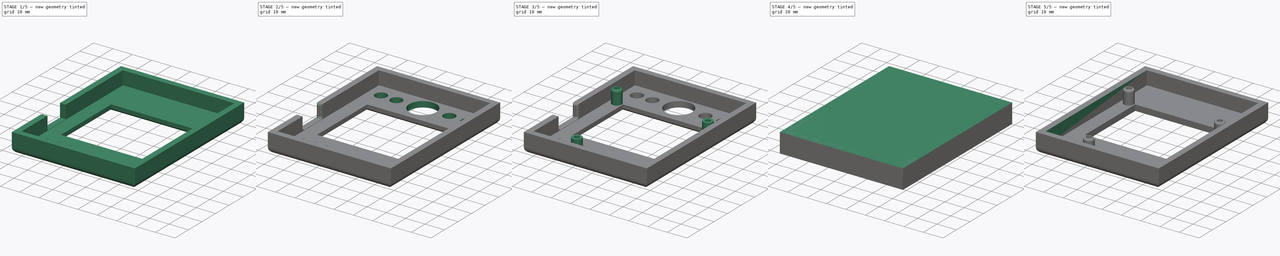
[diagram: build sequence overview — one tinted view per stage of 5, left to right]
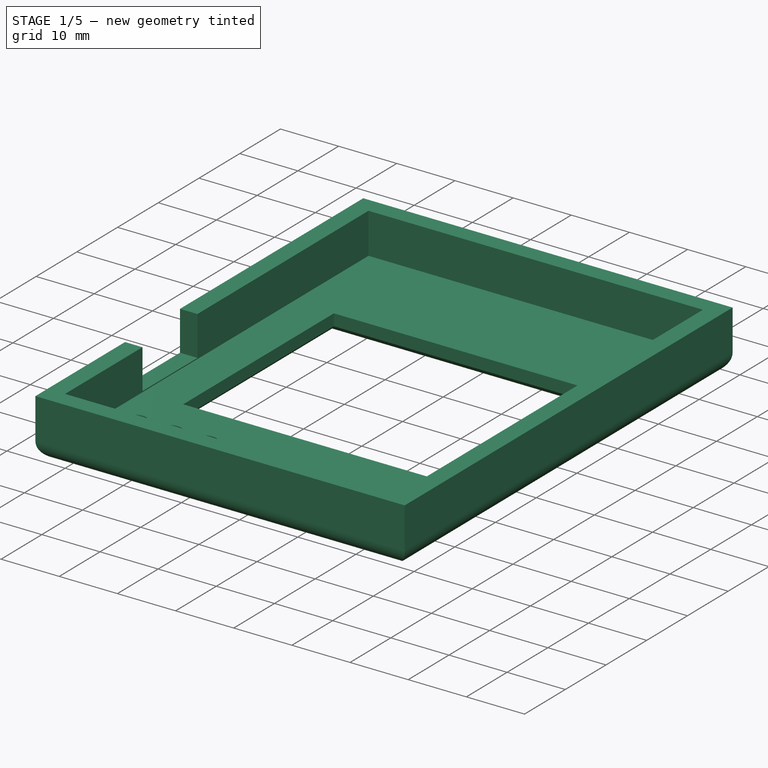
[diagram: stage 1 of 5 — iso view after this stage's code; geometry added in this stage tinted green]
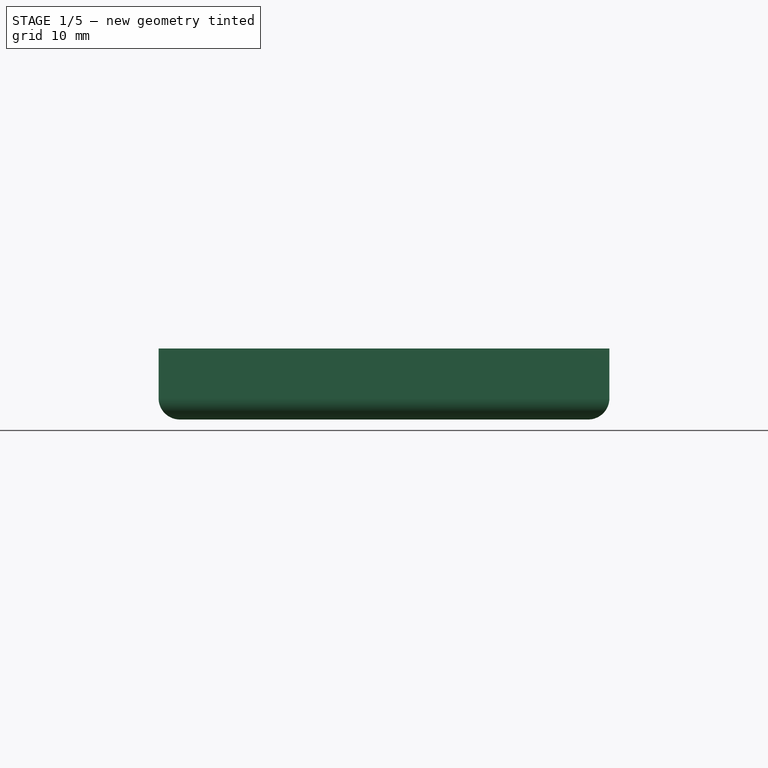
[diagram: stage 1 of 5 — front view after this stage's code; geometry added in this stage tinted green]
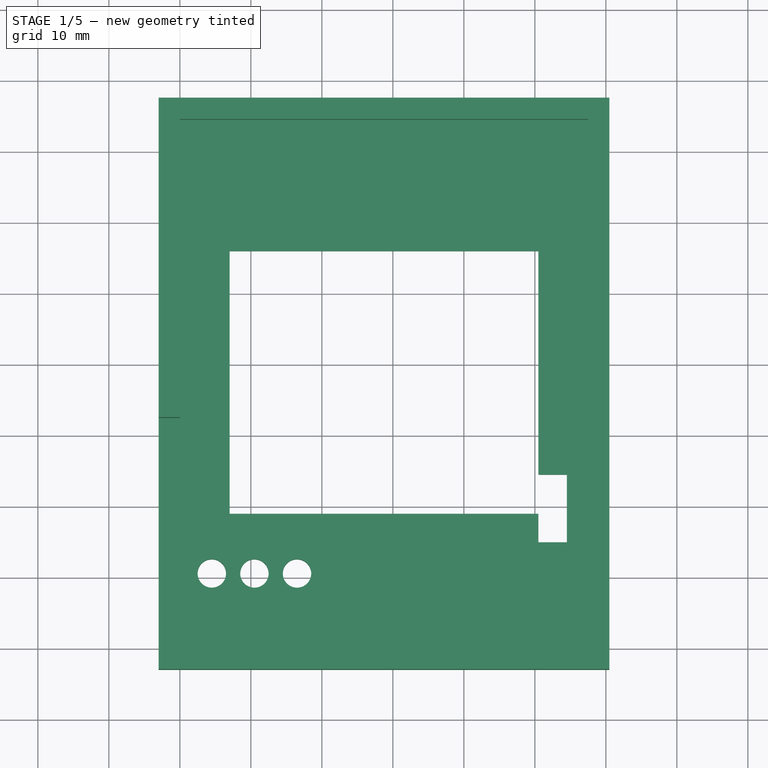
[diagram: stage 1 of 5 — top view after this stage's code; geometry added in this stage tinted green]
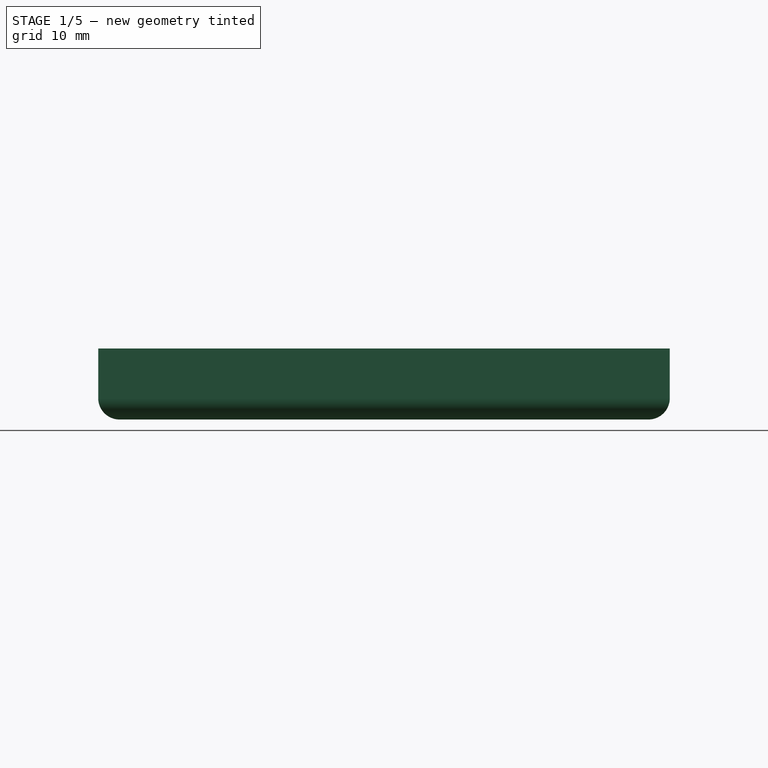
[diagram: stage 1 of 5 — right view after this stage's code; geometry added in this stage tinted green]
FCSTD DOCUMENT  (FreeCAD 0.14R3702 (Git))
Label: shell
License: CC-BY 3.0
LicenseURL: http://creativecommons.org/licenses/by/3.0/
objects: Sketcher::SketchObject×10, PartDesign::Pocket×8, PartDesign::Fillet×6, PartDesign::Pad×2
note: 36 computed .brp shape members not serialized (recipe doc carries the construction recipe); baked Part::Feature solids carry a one-line shape summary decoded from their .brp

FEATURE [Sketcher::SketchObject] Sketch003
  Placement = pos=(0,0,0) rot=(1,0,0;3.14159rad)
  sketch-geometry (6):
    g0: LineSegment [constr] StartX=54.5 StartY=-15 StartZ=0 EndX=54.5 EndY=0 EndZ=0
    g1: LineSegment [constr] StartX=57.5 StartY=-15 StartZ=0 EndX=54.5 EndY=-15 EndZ=0
    g2: LineSegment StartX=54.5 StartY=-15 StartZ=0 EndX=50.5 EndY=-15 EndZ=0
    g3: LineSegment StartX=50.5 StartY=-15 StartZ=0 EndX=50.5 EndY=-24.5305 EndZ=0
    g4: LineSegment StartX=50.5 StartY=-24.5305 StartZ=0 EndX=54.5 EndY=-24.5305 EndZ=0
    g5: LineSegment StartX=54.5 StartY=-24.5305 StartZ=0 EndX=54.5 EndY=-15 EndZ=0
FEATURE [PartDesign::Pocket] Pocket002
  Length = 5
  Sketch = -> Sketch003
  Type = 0
FEATURE [Sketcher::SketchObject] Sketch004
  Placement = pos=(0,0,0) rot=(1,0,0;3.14159rad)
  Support = -> Pocket002 [Face1]
  sketch-geometry (4):
    g0: LineSegment [constr] StartX=5.69455 StartY=0 StartZ=0 EndX=5.69455 EndY=-10.6 EndZ=0
    g1: Circle CenterX=4.5 CenterY=-10.6 CenterZ=0 NormalX=0 NormalY=0 NormalZ=1 Radius=2
    g2: Circle CenterX=10.5 CenterY=-10.6 CenterZ=0 NormalX=0 NormalY=0 NormalZ=1 Radius=2
    g3: Circle CenterX=16.5 CenterY=-10.6 CenterZ=0 NormalX=0 NormalY=0 NormalZ=1 Radius=2
FEATURE [PartDesign::Pocket] Pocket003
  Length = 5
  Sketch = -> Sketch004
  Type = 0
FEATURE [Sketcher::SketchObject] Sketch005
  ExternalGeometry = -> [Pocket003]
  Placement = pos=(-3,0,0) rot=(0.57735,-0.57735,-0.57735;2.0944rad)
  Support = -> Pocket003 [Face18]
  sketch-geometry (7):
    g0: LineSegment [constr] StartX=3 StartY=6.8244 StartZ=0 EndX=0 EndY=6.8244 EndZ=0
    g1: LineSegment [constr] StartX=0 StartY=10 StartZ=0 EndX=0 EndY=2.96155 EndZ=0
    g2: LineSegment [constr] StartX=0 StartY=5.19404 StartZ=0 EndX=-19 EndY=5.19404 EndZ=0
    g3: LineSegment StartX=-32.5 StartY=10.1842 StartZ=0 EndX=-19 EndY=10.1842 EndZ=0
    g4: LineSegment StartX=-19 StartY=10.1842 StartZ=0 EndX=-19 EndY=3.1842 EndZ=0
    g5: LineSegment StartX=-19 StartY=3.1842 StartZ=0 EndX=-32.5 EndY=3.1842 EndZ=0
    g6: LineSegment StartX=-32.5 StartY=3.1842 StartZ=0 EndX=-32.5 EndY=10.1842 EndZ=0
  constraints (20):
    c: PointOnObject(g0,g-3)
    c: Horizontal(g0)
    c: PointOnObject(g1,g-4)
    c: Vertical(g1)
    c: PointOnObject(g0,g1)
    c: DistanceX(g0) = -3
    c: PointOnObject(g2,g1)
    c: Horizontal(g2)
    c: DistanceX(g2) = -19
    c: Coincident(g3,g4)
    c: Coincident(g4,g5)
    c: Coincident(g5,g6)
    c: Coincident(g6,g3)
    c: Horizontal(g3)
    c: Horizontal(g5)
    c: Vertical(g4)
    c: Vertical(g6)
    c: PointOnObject(g2,g4)
    c: DistanceX(g5) = -13.5
    c: DistanceY(g6) = 7
FEATURE [PartDesign::Pocket] Pocket004
  Length = 5
  Sketch = -> Sketch005
  Type = 0
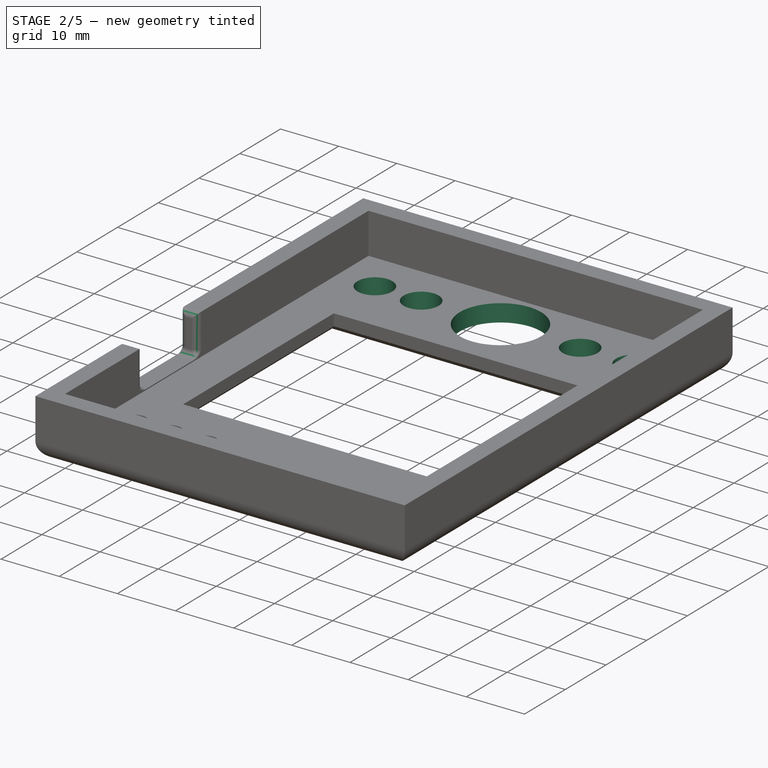
[diagram: stage 2 of 5 — iso view after this stage's code; geometry added in this stage tinted green]
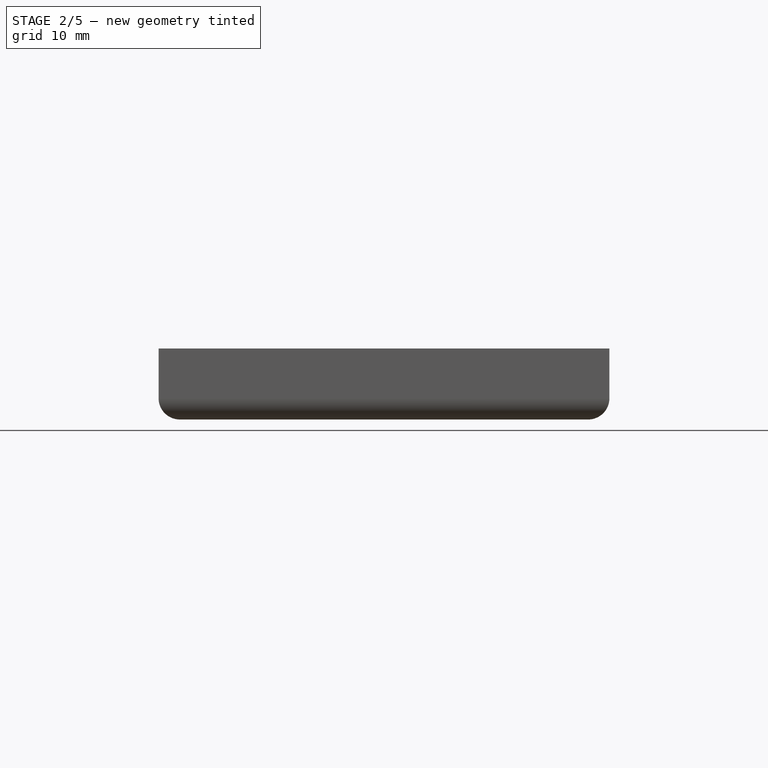
[diagram: stage 2 of 5 — front view after this stage's code; geometry added in this stage tinted green]
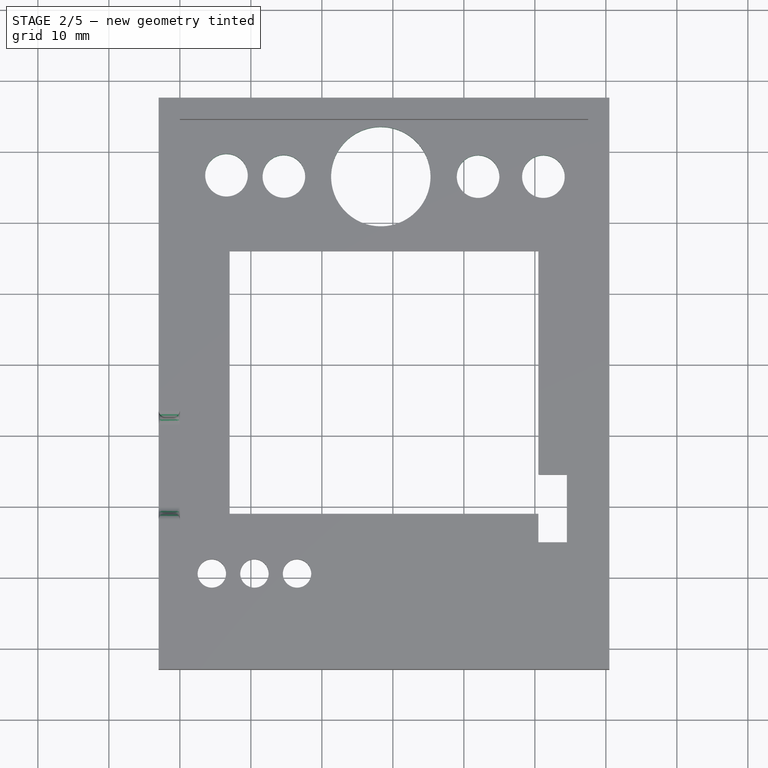
[diagram: stage 2 of 5 — top view after this stage's code; geometry added in this stage tinted green]
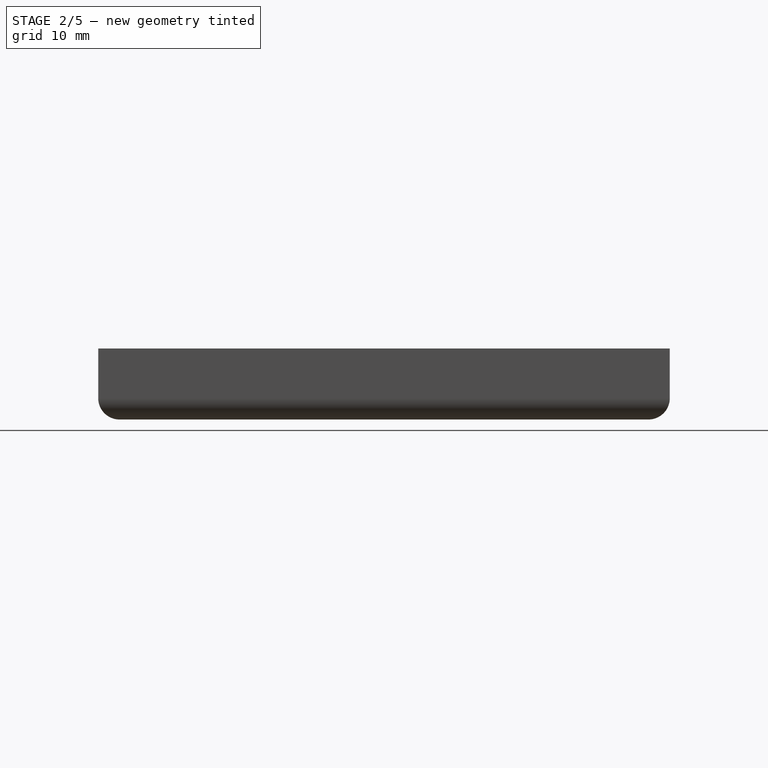
[diagram: stage 2 of 5 — right view after this stage's code; geometry added in this stage tinted green]
FEATURE [PartDesign::Fillet] Fillet001
  Base = -> Pocket004 [Edge54,Edge81,Edge82,Edge71]
  Radius = 1
FEATURE [PartDesign::Fillet] Fillet002
  Base = -> Fillet001 [Edge3,Edge15,Edge16,Edge11]
  Radius = 1
FEATURE [Sketcher::SketchObject] Sketch006
  ExternalGeometry = -> [Fillet002]
  Placement = pos=(0,0,0) rot=(1,0,0;3.14159rad)
  Support = -> Fillet002 [Face24]
  sketch-geometry (6):
    g0: LineSegment [constr] StartX=9.95956 StartY=-74.5 StartZ=0 EndX=9.95956 EndY=-66.5 EndZ=0
    g1: Circle CenterX=28.3 CenterY=-66.5 CenterZ=0 NormalX=0 NormalY=0 NormalZ=1 Radius=7
    g2: Circle CenterX=42 CenterY=-66.5 CenterZ=0 NormalX=0 NormalY=0 NormalZ=1 Radius=3
    g3: Circle CenterX=51.2 CenterY=-66.5 CenterZ=0 NormalX=0 NormalY=0 NormalZ=1 Radius=3
    g4: Circle CenterX=6.56375 CenterY=-66.6989 CenterZ=0 NormalX=0 NormalY=0 NormalZ=1 Radius=3
    g5: Circle CenterX=14.646 CenterY=-66.5232 CenterZ=0 NormalX=0 NormalY=0 NormalZ=1 Radius=3
  constraints (8):
    c: PointOnObject(g0,g-3)
    c: Vertical(g0)
    c: DistanceY(g0) = 8
    c: Radius(g1) = 7
    c: Radius(g5) = 3
    c: Radius(g4) = 3
    c: Radius(g2) = 3
    c: Radius(g3) = 3
FEATURE [PartDesign::Pocket] Pocket005
  Length = 5
  Sketch = -> Sketch006
  Type = 0
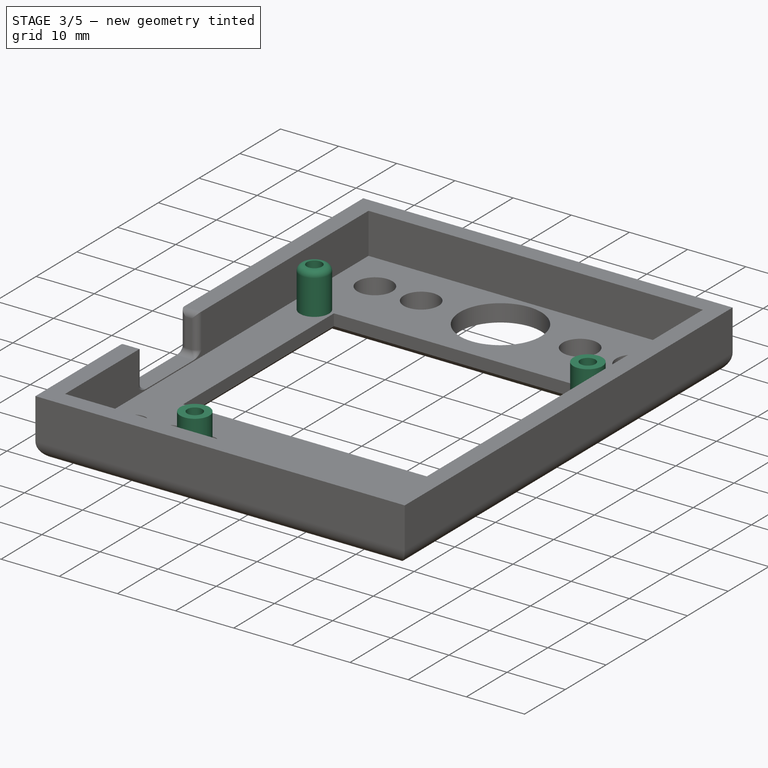
[diagram: stage 3 of 5 — iso view after this stage's code; geometry added in this stage tinted green]
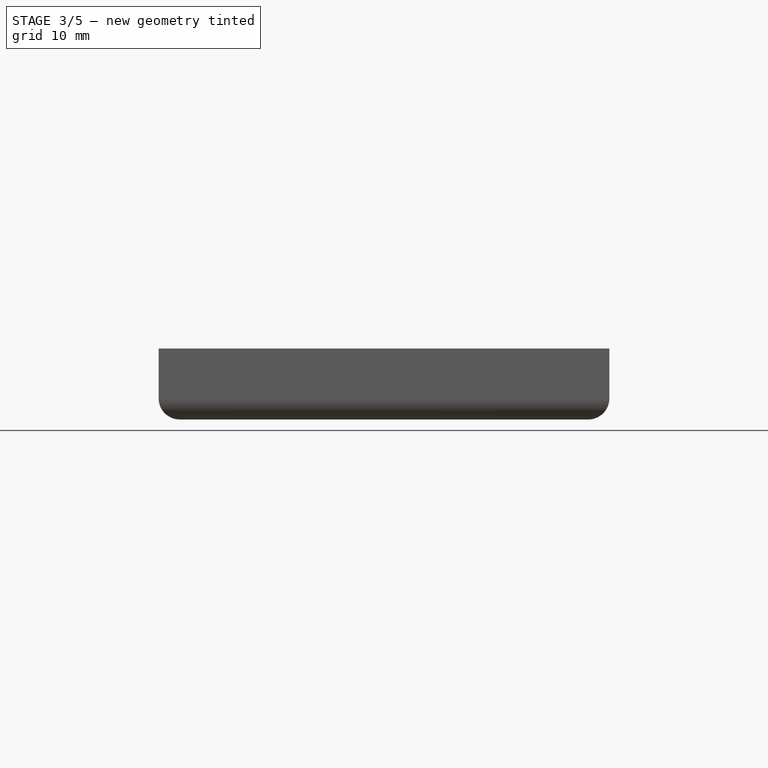
[diagram: stage 3 of 5 — front view after this stage's code; geometry added in this stage tinted green]
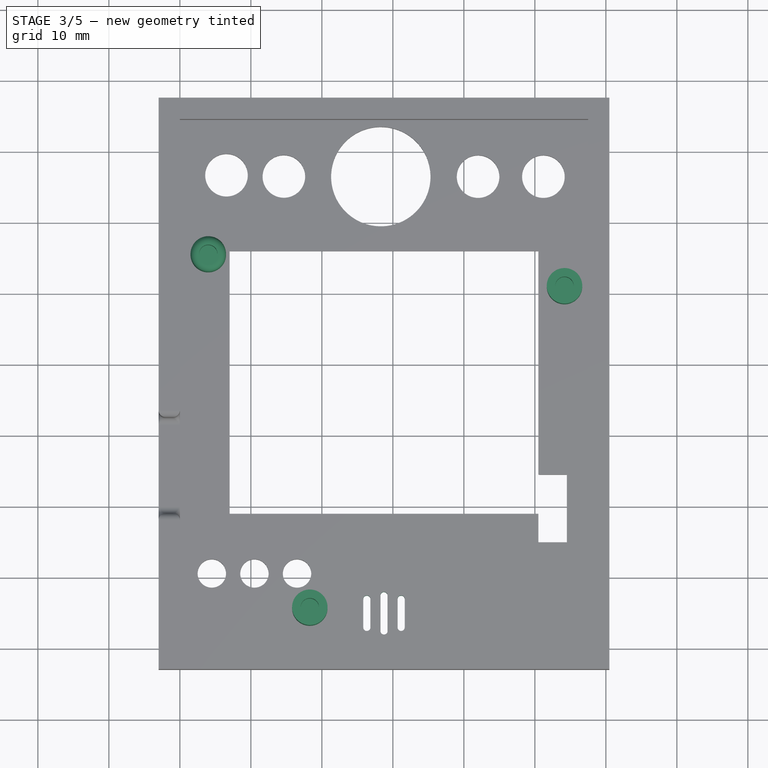
[diagram: stage 3 of 5 — top view after this stage's code; geometry added in this stage tinted green]
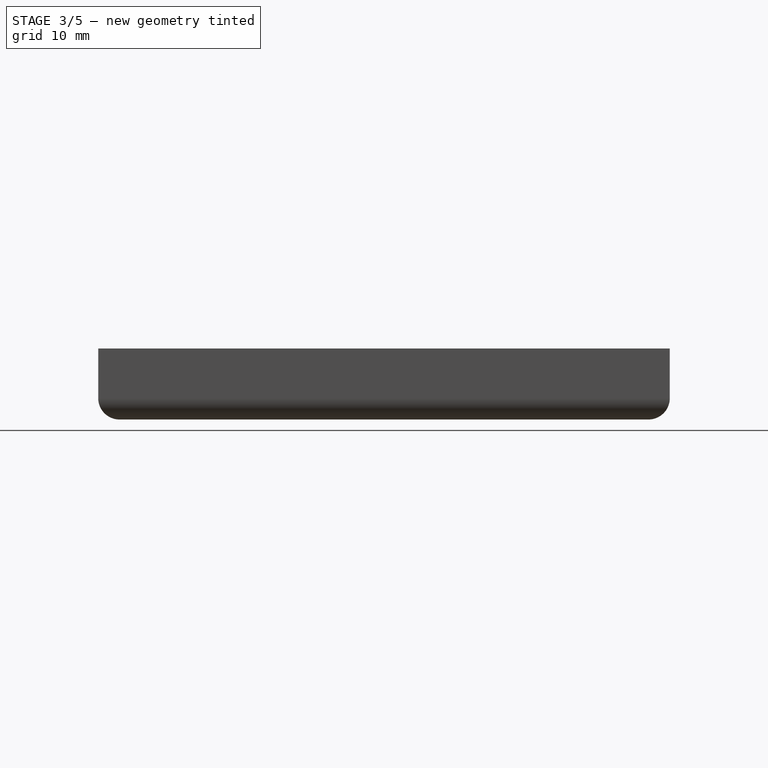
[diagram: stage 3 of 5 — right view after this stage's code; geometry added in this stage tinted green]
FEATURE [Sketcher::SketchObject] Sketch007
  ExternalGeometry = -> [Pocket005]
  Placement = pos=(0,0,0) rot=(1,0,0;3.14159rad)
  Support = -> Pocket005 [Face24]
  sketch-geometry (24):
    g0: LineSegment [constr] StartX=0 StartY=-10.6181 StartZ=0 EndX=57.5 EndY=-10.6181 EndZ=0
    g1: ArcOfCircle CenterX=28.75 CenterY=-2.5 CenterZ=0 NormalX=0 NormalY=0 NormalZ=1 Radius=0.5 StartAngle=6.28318 EndAngle=9.42478
    g2: ArcOfCircle CenterX=28.75 CenterY=-7.5 CenterZ=0 NormalX=0 NormalY=0 NormalZ=1 Radius=0.5 StartAngle=3.14159 EndAngle=6.28318
    g3: LineSegment StartX=28.25 StartY=-2.5 StartZ=0 EndX=28.25 EndY=-7.5 EndZ=0
    g4: LineSegment StartX=29.25 StartY=-2.5 StartZ=0 EndX=29.25 EndY=-7.5 EndZ=0
    g5: LineSegment [constr] StartX=0 StartY=-2.5 StartZ=0 EndX=57.5 EndY=-2.5 EndZ=0
    g6: LineSegment [constr] StartX=6.72581 StartY=0 StartZ=0 EndX=6.72581 EndY=-2.5 EndZ=0
    g7: LineSegment [constr] StartX=0 StartY=0 StartZ=0 EndX=28.75 EndY=-2.5 EndZ=0
    g8: LineSegment [constr] StartX=28.75 StartY=-2.5 StartZ=0 EndX=57.5 EndY=0 EndZ=0
    g9: LineSegment [constr] StartX=25.8766 StartY=0 StartZ=0 EndX=28.75 EndY=-10.6181 EndZ=0
    g10: LineSegment [constr] StartX=28.75 StartY=-10.6181 StartZ=0 EndX=31.6234 EndY=0 EndZ=0
    g11: LineSegment [constr] StartX=28.75 StartY=-7.5 StartZ=0 EndX=28.75 EndY=-10.6181 EndZ=0
    g12: ArcOfCircle CenterX=31.1642 CenterY=-7 CenterZ=0 NormalX=0 NormalY=0 NormalZ=1 Radius=0.5 StartAngle=3.1416 EndAngle=6.28319
    g13: ArcOfCircle CenterX=31.1642 CenterY=-3 CenterZ=0 NormalX=0 NormalY=0 NormalZ=1 Radius=0.5 StartAngle=6.28319 EndAngle=9.42478
    g14: LineSegment StartX=31.6642 StartY=-7 StartZ=0 EndX=31.6642 EndY=-3 EndZ=0
    g15: LineSegment StartX=30.6642 StartY=-7 StartZ=0 EndX=30.6642 EndY=-3 EndZ=0
    g16: ArcOfCircle CenterX=26.3358 CenterY=-3 CenterZ=0 NormalX=0 NormalY=0 NormalZ=1 Radius=0.5 StartAngle=6.28319 EndAngle=9.42478
    g17: ArcOfCircle CenterX=26.3358 CenterY=-7 CenterZ=0 NormalX=0 NormalY=0 NormalZ=1 Radius=0.5 StartAngle=3.14159 EndAngle=6.28318
    g18: LineSegment StartX=25.8358 StartY=-3 StartZ=0 EndX=25.8358 EndY=-7 EndZ=0
    g19: LineSegment StartX=26.8358 StartY=-3 StartZ=0 EndX=26.8358 EndY=-7 EndZ=0
    g20: LineSegment [constr] StartX=28.25 StartY=-2.5 StartZ=0 EndX=26.8358 EndY=-3 EndZ=0
    g21: LineSegment [constr] StartX=29.25 StartY=-2.5 StartZ=0 EndX=30.6642 EndY=-3 EndZ=0
    g22: LineSegment [constr] StartX=26.8358 StartY=-7 StartZ=0 EndX=28.25 EndY=-7.5 EndZ=0
    g23: LineSegment [constr] StartX=29.25 StartY=-7.5 StartZ=0 EndX=30.6642 EndY=-7 EndZ=0
  constraints (75):
    c: PointOnObject(g0,g-2)
    c: Horizontal(g0)
    c: PointOnObject(g0,g-3)
    c: Tangent(g1,g3)
    c: Tangent(g1,g4)
    c: Tangent(g2,g3)
    c: Tangent(g2,g4)
    c: Coincident(g1,g4)
    c: Coincident(g1,g3)
    c: Coincident(g3,g2)
    c: Coincident(g4,g2)
    c: Vertical(g3)
    c: Equal(g1,g2)
    c: Radius(g1) = 0.5
    c: DistanceY(g4) = -5
    c: PointOnObject(g5,g-2)
    c: PointOnObject(g5,g-3)
    c: Horizontal(g5)
    c: PointOnObject(g6,g-1)
    c: Vertical(g6)
    c: DistanceY(g6) = -2.5
    c: PointOnObject(g6,g5)
    c: PointOnObject(g1,g5)
    c: Coincident(g7,g-1)
    c: Coincident(g7,g1)
    c: Coincident(g8,g1)
    c: Coincident(g8,g-3)
    c: Equal(g8,g7)
    c: PointOnObject(g9,g-1)
    c: PointOnObject(g9,g0)
    c: PointOnObject(g10,g-1)
    c: Coincident(g10,g9)
    c: Distance(g10) = 11
    c: Equal(g9,g10)
    c: Coincident(g11,g2)
    c: PointOnObject(g11,g0)
    c: Vertical(g11)
    c: Coincident(g9,g11)
    c: Tangent(g12,g14)
    c: Tangent(g12,g15)
    c: Tangent(g13,g14)
    c: Tangent(g13,g15)
    c: Coincident(g12,g15)
    c: Coincident(g12,g14)
    c: Coincident(g14,g13)
    c: Coincident(g15,g13)
    c: Vertical(g14)
    c: Equal(g12,g13)
    c: Radius(g13) = 0.5
    c: DistanceY(g14) = 4
    c: Tangent(g16,g18)
    c: Tangent(g16,g19)
    c: Tangent(g17,g18)
    c: Tangent(g17,g19)
    c: Coincident(g16,g19)
    c: Coincident(g16,g18)
    c: Coincident(g18,g17)
    c: Coincident(g19,g17)
    c: Vertical(g18)
    c: Equal(g16,g17)
    c: Radius(g16) = 0.5
    c: DistanceY(g19) = -4
    c: Coincident(g20,g1)
    c: Coincident(g20,g16)
    c: Coincident(g21,g1)
    c: Coincident(g21,g13)
    c: Equal(g21,g20)
    c: Coincident(g22,g17)
    c: Coincident(g22,g2)
    c: Coincident(g23,g2)
    c: Coincident(g23,g12)
    c: Equal(g22,g23)
    c: Equal(g23,g21)
    c: Equal(g21,g20)
    c: Distance(g23) = 1.5
FEATURE [PartDesign::Pocket] Pocket006
  Length = 5
  Sketch = -> Sketch007
  Type = 0
FEATURE [Sketcher::SketchObject] Sketch008
  ExternalGeometry = -> [Pocket006]
  Placement = pos=(0,0,3) rot=(0,0,1;0rad)
  Support = -> Pocket006 [Face29]
  sketch-geometry (9):
    g0: LineSegment [constr] StartX=4 StartY=74.5 StartZ=0 EndX=4 EndY=55.5 EndZ=0
    g1: LineSegment [constr] StartX=4 StartY=55.5 StartZ=0 EndX=57.5 EndY=55.5 EndZ=0
    g2: Circle CenterX=4 CenterY=55.5 CenterZ=0 NormalX=0 NormalY=0 NormalZ=1 Radius=2.5
    g3: LineSegment [constr] StartX=54 StartY=51 StartZ=0 EndX=57.5 EndY=51 EndZ=0
    g4: LineSegment [constr] StartX=54 StartY=51 StartZ=0 EndX=54 EndY=74.5 EndZ=0
    g5: Circle CenterX=54.1711 CenterY=51 CenterZ=0 NormalX=0 NormalY=0 NormalZ=1 Radius=2.5
    g6: LineSegment [constr] StartX=0 StartY=5.71716 StartZ=0 EndX=18.3 EndY=5.71716 EndZ=0
    g7: LineSegment [constr] StartX=18.3 StartY=5.71716 StartZ=0 EndX=18.3 EndY=-0.282843 EndZ=0
    g8: Circle CenterX=18.3 CenterY=5.71716 CenterZ=0 NormalX=0 NormalY=0 NormalZ=1 Radius=2.5
  constraints (26):
    c: Vertical(g0)
    c: DistanceY(g0) = -19
    c: Coincident(g1,g0)
    c: PointOnObject(g1,g-3)
    c: Horizontal(g1)
    c: DistanceX(g1) = 53.5
    c: Coincident(g2,g0)
    c: PointOnObject(g3,g-3)
    c: Horizontal(g3)
    c: Coincident(g4,g3)
    c: PointOnObject(g4,g-5)
    c: Vertical(g4)
    c: DistanceY(g4) = 23.5
    c: PointOnObject(g0,g-5)
    c: Radius(g2) = 2.5
    c: DistanceX(g3) = 3.5
    c: PointOnObject(g5,g3)
    c: Radius(g5) = 2.5
    c: PointOnObject(g6,g-2)
    c: Vertical(g7)
    c: Horizontal(g6)
    c: Coincident(g7,g6)
    c: DistanceX(g6) = 18.3
    c: DistanceY(g7) = -6
    c: Coincident(g8,g6)
    c: Radius(g8) = 2.5
FEATURE [PartDesign::Pad] Pad001
  Length = 7
  Length2 = 100
  Sketch = -> Sketch008
  Type = 0
FEATURE [Sketcher::SketchObject] Sketch009
  ExternalGeometry = -> [Pad001]
  Placement = pos=(0,0,10) rot=(0,0,1;0rad)
  Support = -> Pad001 [Face66]
  sketch-geometry (3):
    g0: Circle CenterX=4 CenterY=55.5 CenterZ=0 NormalX=0 NormalY=0 NormalZ=1 Radius=1.3
    g1: Circle CenterX=18.3 CenterY=5.71716 CenterZ=0 NormalX=0 NormalY=0 NormalZ=1 Radius=1.3
    g2: Circle CenterX=54.1711 CenterY=51 CenterZ=0 NormalX=0 NormalY=0 NormalZ=1 Radius=1.3
  constraints (6):
    c: Coincident(g0,g-3)
    c: Coincident(g1,g-5)
    c: Coincident(g2,g-4)
    c: Radius(g2) = 1.3
    c: Radius(g0) = 1.3
    c: Radius(g1) = 1.3
FEATURE [PartDesign::Pocket] Pocket007
  Length = 5
  Sketch = -> Sketch009
  Type = 0
FEATURE [PartDesign::Fillet] Fillet003
  Base = -> Pocket007 [Edge170]
  Radius = 1
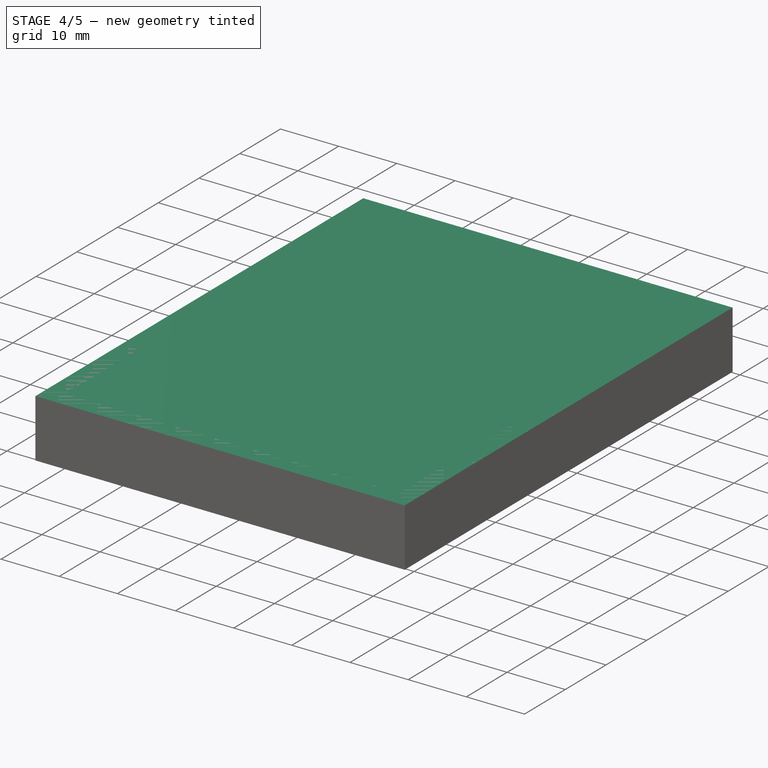
[diagram: stage 4 of 5 — iso view after this stage's code; geometry added in this stage tinted green]
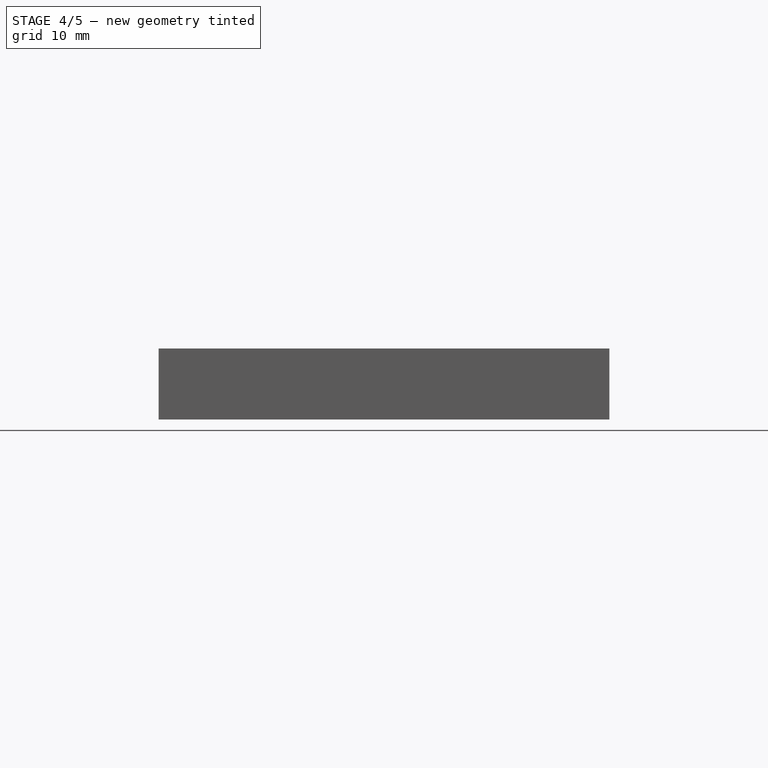
[diagram: stage 4 of 5 — front view after this stage's code; geometry added in this stage tinted green]
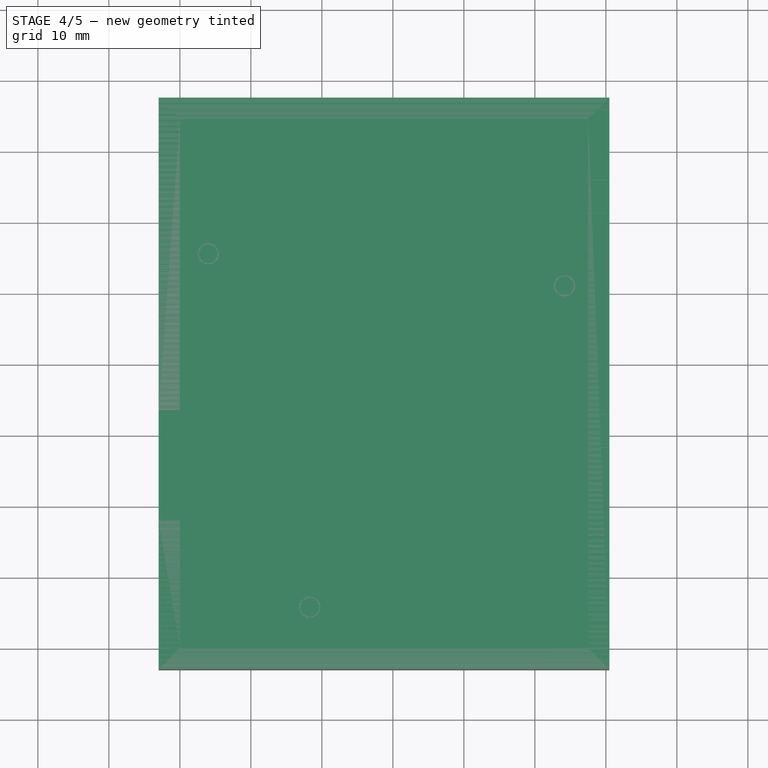
[diagram: stage 4 of 5 — top view after this stage's code; geometry added in this stage tinted green]
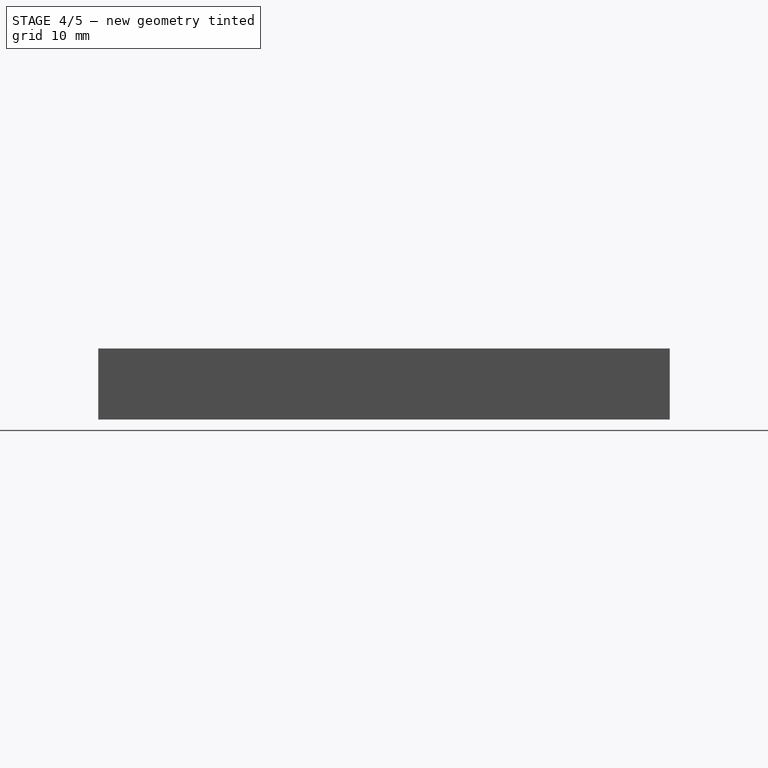
[diagram: stage 4 of 5 — right view after this stage's code; geometry added in this stage tinted green]
FEATURE [Sketcher::SketchObject] Sketch
  sketch-geometry (12):
    g0: LineSegment [constr] StartX=0 StartY=0 StartZ=0 EndX=57.5 EndY=0 EndZ=0
    g1: LineSegment [constr] StartX=57.5 StartY=0 StartZ=0 EndX=57.5 EndY=74.5 EndZ=0
    g2: LineSegment [constr] StartX=0 StartY=0 StartZ=0 EndX=0 EndY=74.5 EndZ=0
    g3: LineSegment [constr] StartX=0 StartY=74.5 StartZ=0 EndX=57.5 EndY=74.5 EndZ=0
    g4: LineSegment StartX=-3 StartY=77.5 StartZ=0 EndX=60.5 EndY=77.5 EndZ=0
    g5: LineSegment StartX=60.5 StartY=77.5 StartZ=0 EndX=60.5 EndY=-3 EndZ=0
    g6: LineSegment StartX=60.5 StartY=-3 StartZ=0 EndX=-3 EndY=-3 EndZ=0
    g7: LineSegment StartX=-3 StartY=-3 StartZ=0 EndX=-3 EndY=77.5 EndZ=0
    g8: LineSegment [constr] StartX=-3 StartY=54.1987 StartZ=0 EndX=0 EndY=54.1987 EndZ=0
    g9: LineSegment [constr] StartX=10 StartY=77.5 StartZ=0 EndX=10 EndY=74.5 EndZ=0
    g10: LineSegment [constr] StartX=60.5 StartY=55.8519 StartZ=0 EndX=57.5 EndY=55.8519 EndZ=0
    g11: LineSegment [constr] StartX=30 StartY=-3 StartZ=0 EndX=30 EndY=0 EndZ=0
  constraints (34):
    c: Coincident(g0,g-1)
    c: Horizontal(g0)
    c: Coincident(g1,g0)
    c: Vertical(g1)
    c: Coincident(g2,g-1)
    c: PointOnObject(g2,g-2)
    c: Coincident(g3,g2)
    c: Horizontal(g3)
    c: Coincident(g1,g3)
    c: DistanceY(g1) = 74.5
    c: Coincident(g4,g5)
    c: Coincident(g5,g6)
    c: Coincident(g6,g7)
    c: Coincident(g7,g4)
    c: Horizontal(g4)
    c: Horizontal(g6)
    c: Vertical(g5)
    c: Vertical(g7)
    c: PointOnObject(g8,g7)
    c: PointOnObject(g8,g2)
    c: Horizontal(g8)
    c: PointOnObject(g9,g4)
    c: PointOnObject(g9,g3)
    c: Vertical(g9)
    c: PointOnObject(g10,g5)
    c: PointOnObject(g10,g1)
    c: Horizontal(g10)
    c: PointOnObject(g11,g6)
    c: PointOnObject(g11,g0)
    c: Vertical(g11)
    c: DistanceX(g8) = 3
    c: DistanceY(g11) = 3
    c: DistanceX(g10) = -3
    c: DistanceY(g9) = -3
FEATURE [PartDesign::Pad] Pad
  Length = 10
  Length2 = 100
  Sketch = -> Sketch
  Type = 0
FEATURE [PartDesign::Fillet] Fillet004
  Base = -> Fillet003 [Edge116]
  Radius = 1
FEATURE [PartDesign::Fillet] Fillet005
  Base = -> Fillet004 [Edge114]
  Radius = 1
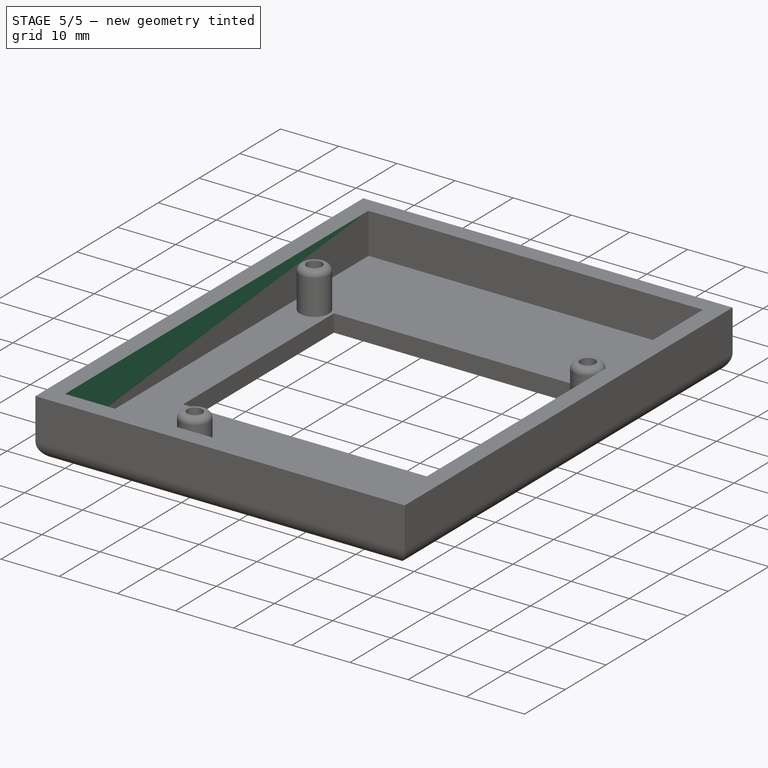
[diagram: stage 5 of 5 — iso view after this stage's code; geometry added in this stage tinted green]
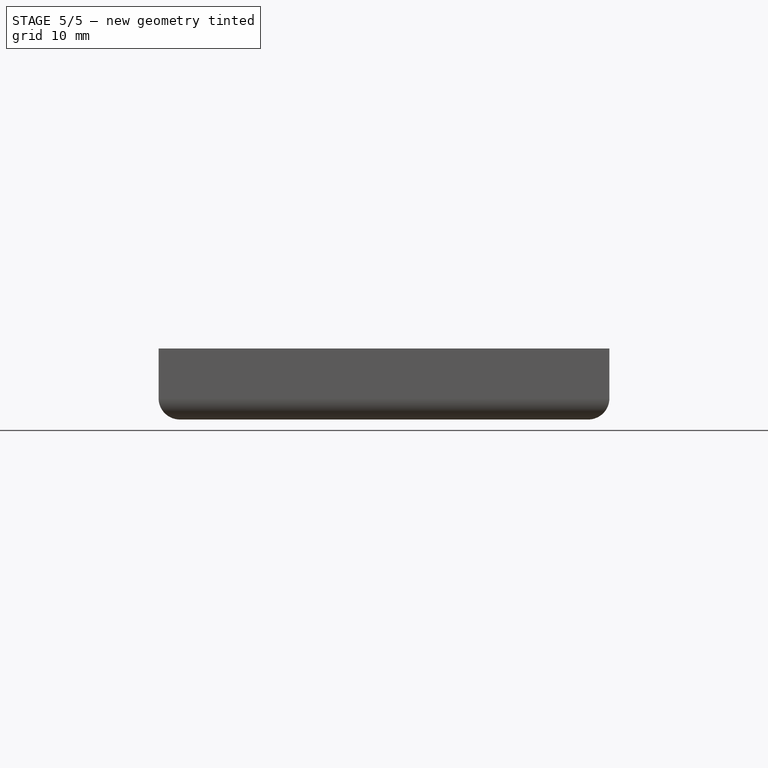
[diagram: stage 5 of 5 — front view after this stage's code; geometry added in this stage tinted green]
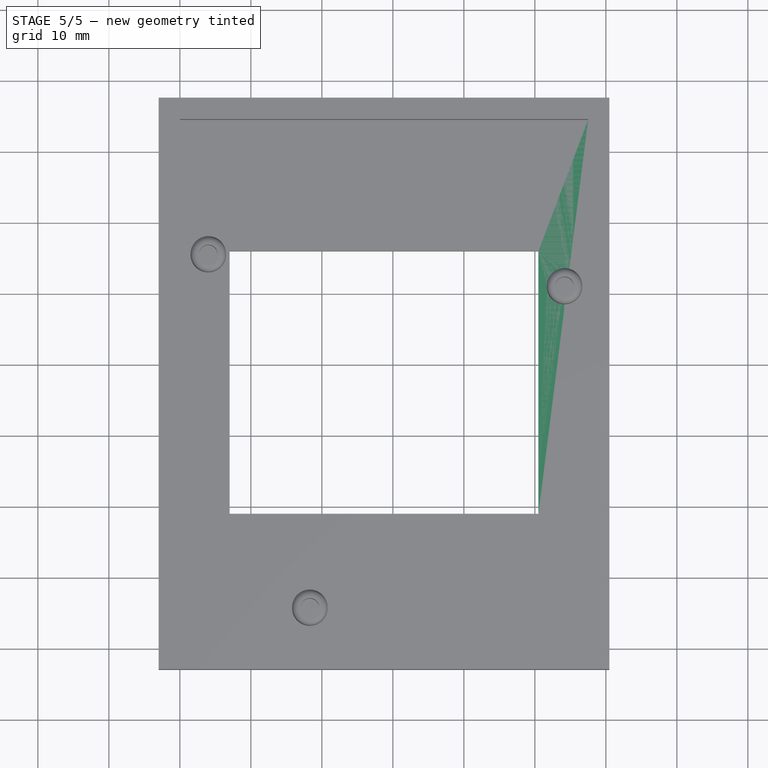
[diagram: stage 5 of 5 — top view after this stage's code; geometry added in this stage tinted green]
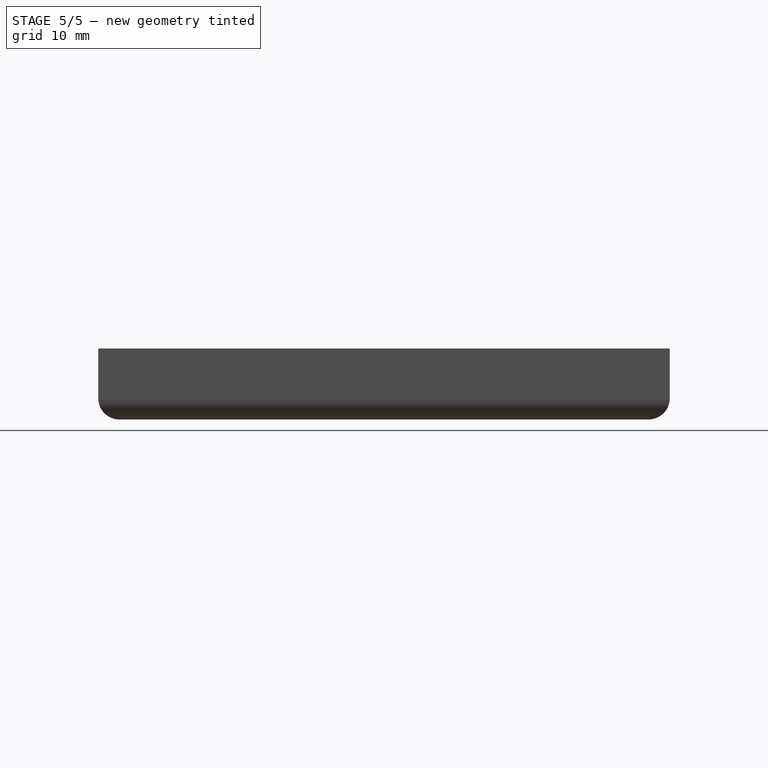
[diagram: stage 5 of 5 — right view after this stage's code; geometry added in this stage tinted green]
FEATURE [Sketcher::SketchObject] Sketch001
  ExternalGeometry = -> [Pad]
  Placement = pos=(0,0,10) rot=(0,0,1;0rad)
  Support = -> Pad [Face6]
  sketch-geometry (8):
    g0: LineSegment StartX=0 StartY=74.5 StartZ=0 EndX=57.5 EndY=74.5 EndZ=0
    g1: LineSegment StartX=57.5 StartY=74.5 StartZ=0 EndX=57.5 EndY=0 EndZ=0
    g2: LineSegment StartX=57.5 StartY=0 StartZ=0 EndX=0 EndY=0 EndZ=0
    g3: LineSegment StartX=0 StartY=0 StartZ=0 EndX=0 EndY=74.5 EndZ=0
    g4: LineSegment [constr] StartX=34.4989 StartY=77.5 StartZ=0 EndX=34.4989 EndY=74.5 EndZ=0
    g5: LineSegment [constr] StartX=57.5 StartY=60 StartZ=0 EndX=60.5 EndY=60 EndZ=0
    g6: LineSegment [constr] StartX=-3 StartY=60 StartZ=0 EndX=0 EndY=60 EndZ=0
    g7: LineSegment [constr] StartX=12.3771 StartY=0 StartZ=0 EndX=12.3771 EndY=-3 EndZ=0
  constraints (25):
    c: Coincident(g0,g1)
    c: Coincident(g1,g2)
    c: Coincident(g2,g3)
    c: Coincident(g3,g0)
    c: Horizontal(g0)
    c: Horizontal(g2)
    c: Vertical(g1)
    c: Vertical(g3)
    c: PointOnObject(g1,g-1)
    c: PointOnObject(g4,g-3)
    c: PointOnObject(g4,g0)
    c: Vertical(g4)
    c: DistanceY(g4) = -3
    c: PointOnObject(g5,g1)
    c: PointOnObject(g5,g-4)
    c: Horizontal(g5)
    c: DistanceX(g5) = 3
    c: PointOnObject(g6,g-5)
    c: PointOnObject(g6,g3)
    c: Horizontal(g6)
    c: DistanceX(g6) = 3
    c: PointOnObject(g7,g2)
    c: PointOnObject(g7,g-6)
    c: Vertical(g7)
    c: DistanceY(g7) = -3
FEATURE [PartDesign::Pocket] Pocket
  Length = 7
  Sketch = -> Sketch001
  Type = 0
FEATURE [PartDesign::Fillet] Fillet
  Base = -> Pocket [Edge3,Edge9,Edge11,Edge6]
  Radius = 3
FEATURE [Sketcher::SketchObject] Sketch002
  ExternalGeometry = -> [Fillet]
  Placement = pos=(0,0,0) rot=(1,0,0;3.14159rad)
  Support = -> Fillet [Face8]
  sketch-geometry (22):
    g0: LineSegment [constr] StartX=0 StartY=-5.77755 StartZ=0 EndX=22.5 EndY=-5.77755 EndZ=0
    g1: LineSegment [constr] StartX=0 StartY=-36.202 StartZ=0 EndX=7 EndY=-36.202 EndZ=0
    g2: LineSegment StartX=7 StartY=-19 StartZ=0 EndX=50.5 EndY=-19 EndZ=0
    g3: LineSegment StartX=50.5 StartY=-19 StartZ=0 EndX=50.5 EndY=-56 EndZ=0
    g4: LineSegment StartX=50.5 StartY=-56 StartZ=0 EndX=7 EndY=-56 EndZ=0
    g5: LineSegment StartX=7 StartY=-56 StartZ=0 EndX=7 EndY=-19 EndZ=0
    g6: LineSegment [constr] StartX=50.5 StartY=-36.6642 StartZ=0 EndX=57.5 EndY=-36.6642 EndZ=0
    g7: LineSegment [constr] StartX=22.5 StartY=0 StartZ=0 EndX=35 EndY=0 EndZ=0
    g8: LineSegment [constr] StartX=35 StartY=0 StartZ=0 EndX=35 EndY=-12.5 EndZ=0
    g9: LineSegment [constr] StartX=35 StartY=-12.5 StartZ=0 EndX=22.5 EndY=-12.5 EndZ=0
    g10: LineSegment [constr] StartX=22.5 StartY=-12.5 StartZ=0 EndX=22.5 EndY=0 EndZ=0
    g11: LineSegment [constr] StartX=35 StartY=-6.64189 StartZ=0 EndX=57.5 EndY=-6.64189 EndZ=0
    g12: LineSegment [constr] StartX=14.609 StartY=0 StartZ=0 EndX=14.609 EndY=-19 EndZ=0
    g13: LineSegment [constr] StartX=28.75 StartY=0 StartZ=0 EndX=22.5 EndY=-12.5 EndZ=0
    g14: LineSegment [constr] StartX=28.75 StartY=0 StartZ=0 EndX=35 EndY=-12.5 EndZ=0
    g15: LineSegment [constr] StartX=28.75 StartY=0 StartZ=0 EndX=28.75 EndY=-12.5 EndZ=0
    g16: LineSegment [constr] StartX=22.5 StartY=-12.5 StartZ=0 EndX=25.4447 EndY=0 EndZ=0
    g17: LineSegment [constr] StartX=25.4447 StartY=0 StartZ=0 EndX=28.75 EndY=-12.5 EndZ=0
    g18: LineSegment [constr] StartX=28.75 StartY=-12.5 StartZ=0 EndX=32.099 EndY=0 EndZ=0
    g19: LineSegment StartX=32.099 StartY=0 StartZ=0 EndX=32.2168 EndY=0 EndZ=0
    g20: LineSegment [constr] StartX=32.2168 StartY=0 StartZ=0 EndX=35.0434 EndY=-12.5957 EndZ=0
    g21: LineSegment StartX=27.2755 StartY=0 StartZ=0 EndX=30 EndY=0 EndZ=0
  constraints (62):
    c: PointOnObject(g0,g-4)
    c: Horizontal(g0)
    c: DistanceX(g0) = 22.5
    c: PointOnObject(g1,g-4)
    c: Horizontal(g1)
    c: DistanceX(g1) = 9
    c: Coincident(g2,g3)
    c: Coincident(g3,g4)
    c: Coincident(g4,g5)
    c: Coincident(g5,g2)
    c: Horizontal(g2)
    c: Horizontal(g4)
    c: Vertical(g3)
    c: Vertical(g5)
    c: PointOnObject(g1,g5)
    c: PointOnObject(g6,g3)
    c: Horizontal(g6)
    c: DistanceX(g6) = 9
    c: PointOnObject(g6,g-5)
    c: Coincident(g7,g8)
    c: Coincident(g8,g9)
    c: Coincident(g9,g10)
    c: Coincident(g10,g7)
    c: Horizontal(g7)
    c: Horizontal(g9)
    c: Vertical(g8)
    c: Vertical(g10)
    c: Equal(g10,g8)
    c: Equal(g7,g9)
    c: PointOnObject(g0,g10)
    c: PointOnObject(g11,g8)
    c: Horizontal(g11)
    c: Equal(g11,g0)
    c: Equal(g7,g10)
    c: PointOnObject(g11,g-5)
    c: PointOnObject(g7,g-3)
    c: Equal(g5,g3)
    c: Equal(g2,g4)
    c: DistanceY(g5) = 37
    c: PointOnObject(g12,g-3)
    c: PointOnObject(g12,g2)
    c: Vertical(g12)
    c: DistanceY(g12) = -19
    c: PointOnObject(g13,g7)
    c: Coincident(g13,g9)
    c: Coincident(g14,g13)
    c: Coincident(g14,g8)
    c: Equal(g13,g14)
    c: Coincident(g15,g13)
    c: PointOnObject(g15,g9)
    c: Vertical(g15)
    c: Coincident(g9,g16)
    c: PointOnObject(g16,g7)
    c: Coincident(g16,g17)
    c: Coincident(g17,g15)
    c: Coincident(g17,g18)
    c: PointOnObject(g18,g7)
    c: Coincident(g18,g19)
    c: Coincident(g19,g18)
    c: Coincident(g19,g20)
    c: Coincident(g20,g8)
    c: Horizontal(g21)
FEATURE [PartDesign::Pocket] Pocket001
  Length = 5
  Sketch = -> Sketch002
  Type = 0
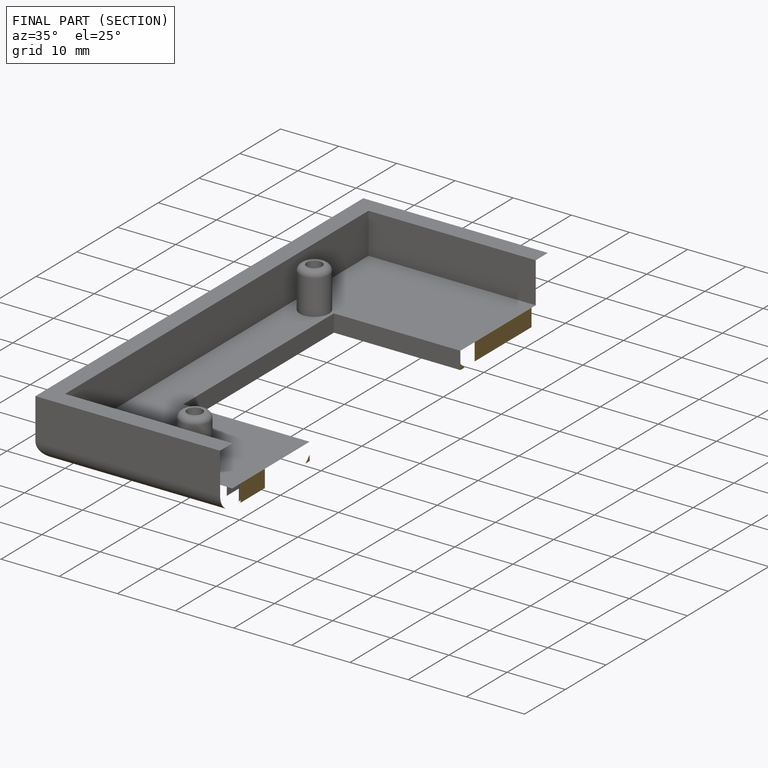
[diagram: finished part — half-section view (interior)]
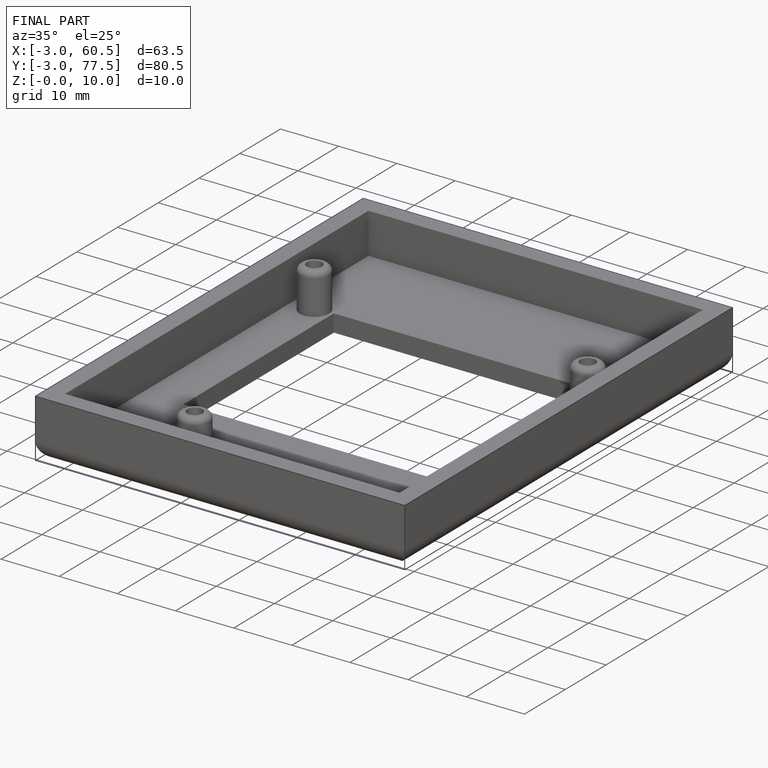
[diagram: finished part — iso view with bounding-box wireframe]
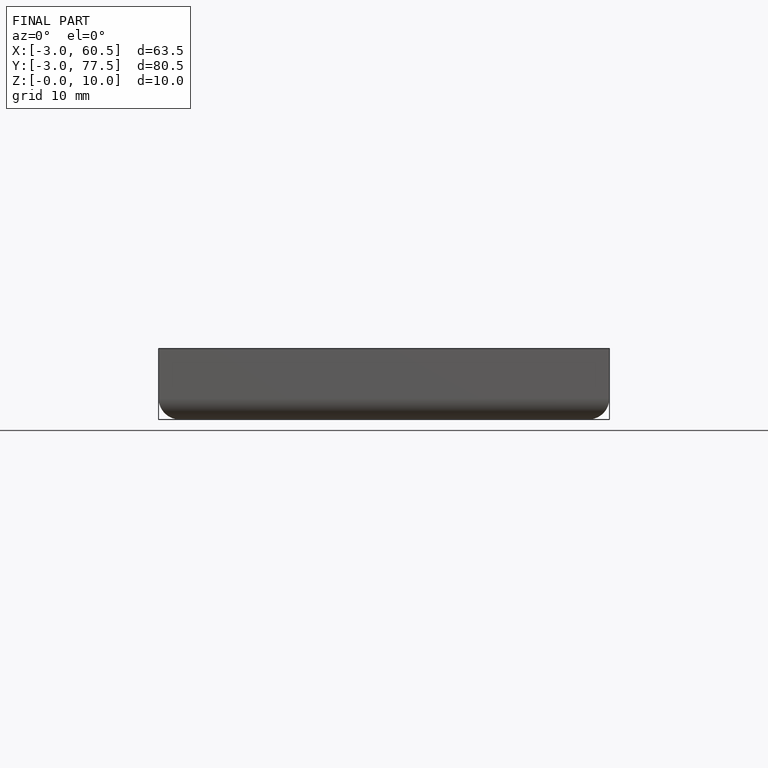
[diagram: finished part — front view with bounding-box wireframe]
